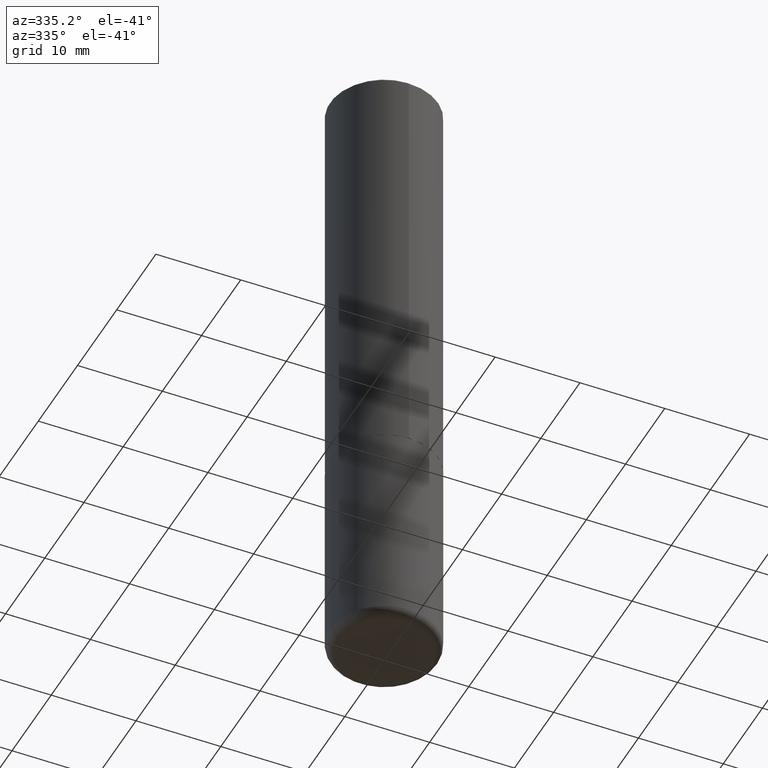
[diagram: clean part render]
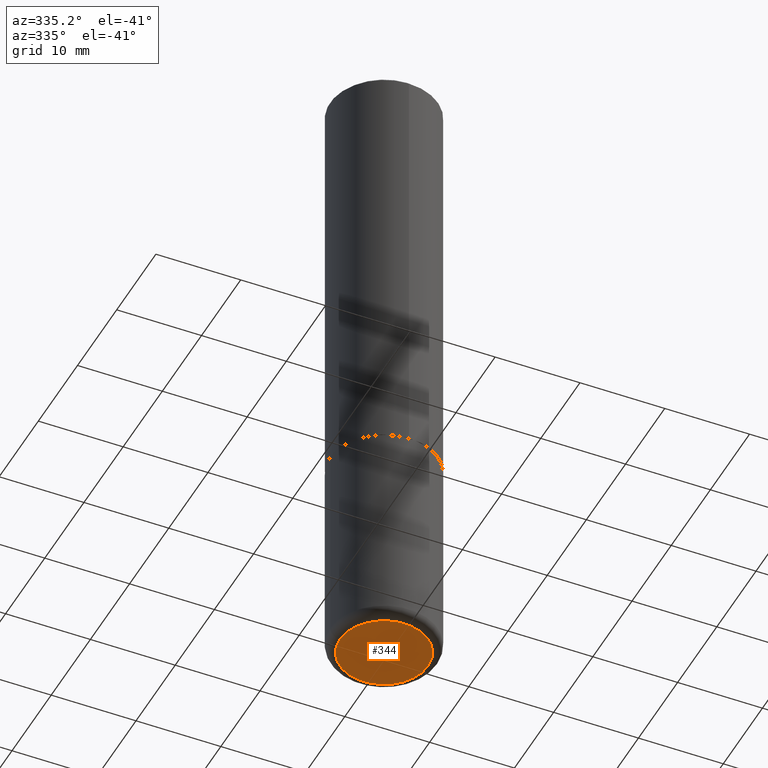
[diagram: same view with one face highlighted and labeled with its STEP entity id]
A machine part, auxiliary view. The second image highlights one B-rep face of the part: STEP entity #344.
In plain terms, the highlighted planar face has unit normal (0, -0, -1).
Its self-contained STEP definition (entity closure, byte-faithful):
#115 = CARTESIAN_POINT ( 'NONE',  ( 7.336406418555412032E-29, -1.047444401652943951E-14, -3.000000000000000888 ) ) ;
#127 = CARTESIAN_POINT ( 'NONE',  ( -0.2049999999999999878, -8.779400962551236573E-15, -3.000000000000000888 ) ) ;
#144 = AXIS2_PLACEMENT_3D ( 'NONE', #213, #352, #217 ) ;
#159 = CARTESIAN_POINT ( 'NONE',  ( 1.753072004642338911E-29, -1.847009668091265282E-14, -3.000000000000000888 ) ) ;
#161 = ORIENTED_EDGE ( 'NONE', *, *, #376, .F. ) ;
#213 = CARTESIAN_POINT ( 'NONE',  ( 7.336406418555412032E-29, -1.047444401652943951E-14, -3.000000000000000888 ) ) ;
#217 = DIRECTION ( 'NONE',  ( 1.000000000000000000, -6.982962677686261977E-15, 0.000000000000000000 ) ) ;
#231 = AXIS2_PLACEMENT_3D ( 'NONE', #159, #247, #284 ) ;
#239 = DIRECTION ( 'NONE',  ( 1.000000000000000000, -6.982962677686261977E-15, 0.000000000000000000 ) ) ;
#243 = FACE_OUTER_BOUND ( 'NONE', #335, .T. ) ;
#247 = DIRECTION ( 'NONE',  ( 2.438088387897960049E-29, -3.491481338843145188E-15, -1.000000000000000000 ) ) ;
#284 = DIRECTION ( 'NONE',  ( -1.000000000000000000, 6.982962677686265922E-15, -4.876176775795935793E-29 ) ) ;
#290 = EDGE_CURVE ( 'NONE', #406, #415, #361, .T. ) ;
#335 = EDGE_LOOP ( 'NONE', ( #161, #342 ) ) ;
#339 = CIRCLE ( 'NONE', #144, 0.2049999999999999878 ) ;
#342 = ORIENTED_EDGE ( 'NONE', *, *, #290, .F. ) ;
#344 = ADVANCED_FACE ( 'NONE', ( #243 ), #414, .T. ) ;
#345 = CARTESIAN_POINT ( 'NONE',  ( 0.2049999999999999878, -1.190595136545512292E-14, -3.000000000000000888 ) ) ;
#352 = DIRECTION ( 'NONE',  ( -2.445468806185136597E-29, 3.491481338843145583E-15, 1.000000000000000000 ) ) ;
#361 = CIRCLE ( 'NONE', #417, 0.2049999999999999878 ) ;
#375 = DIRECTION ( 'NONE',  ( -2.445468806185136597E-29, 3.491481338843145583E-15, 1.000000000000000000 ) ) ;
#376 = EDGE_CURVE ( 'NONE', #415, #406, #339, .T. ) ;
#406 = VERTEX_POINT ( 'NONE', #127 ) ;
#414 = PLANE ( 'NONE',  #231 ) ;
#415 = VERTEX_POINT ( 'NONE', #345 ) ;
#417 = AXIS2_PLACEMENT_3D ( 'NONE', #115, #375, #239 ) ;